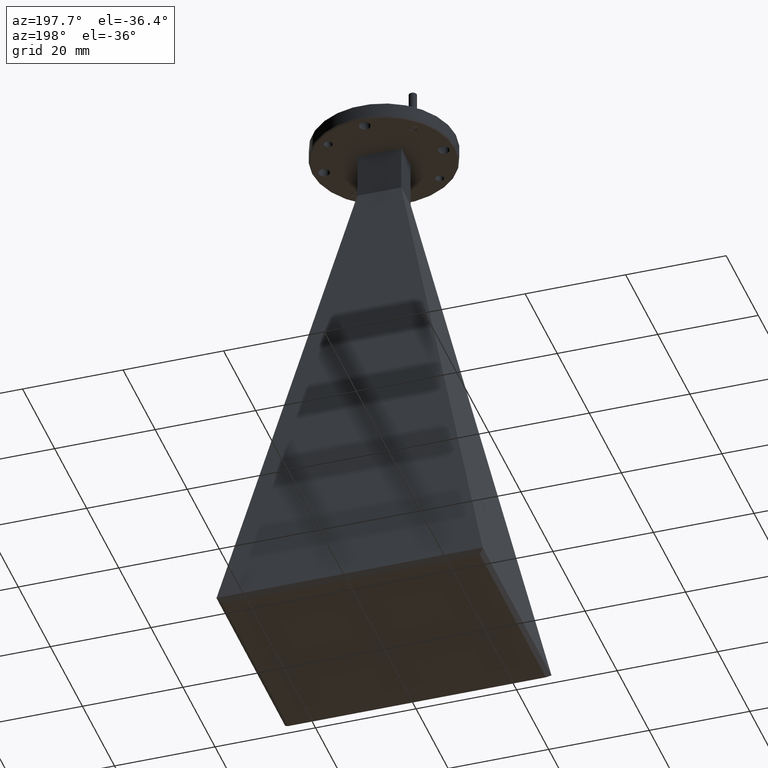
[diagram: clean part render]
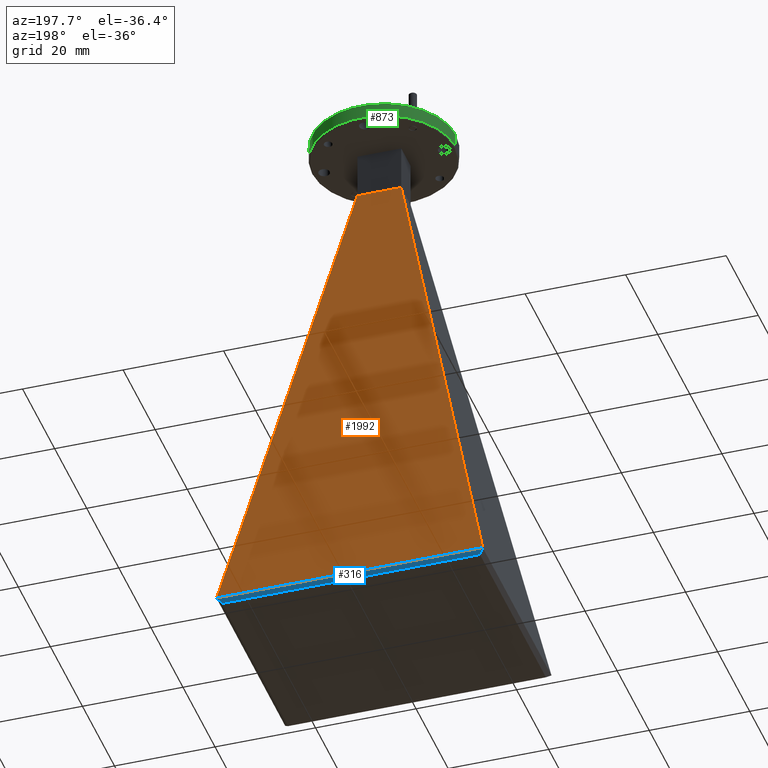
[diagram: same view with three faces highlighted in distinct colors, each labeled with its STEP entity id]
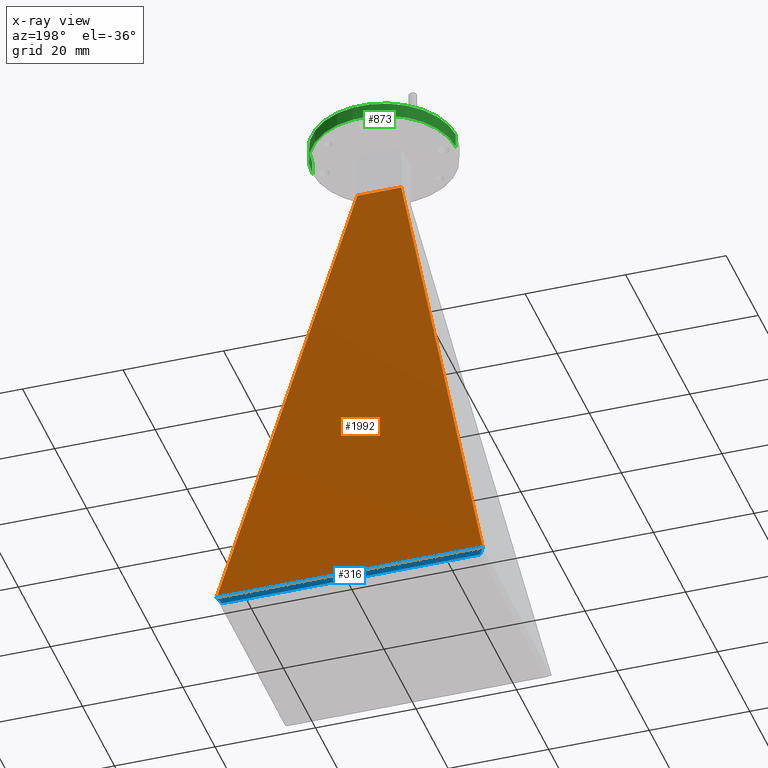
[diagram: x-ray of the same camera — body ghosted, the three highlighted faces saturated]
A machine part, auxiliary view with three faces highlighted in distinct colors.
The next image is the same camera in x-ray (body ghosted, the three faces saturated) — at least one of them is partly hidden behind the body in this view.
Their STEP definitions:

[orange] entity #1992 — the highlighted planar face has unit normal (0, 0.9842, 0.1771).
#40 = DIRECTION ( 'NONE',  ( -1.000000000000000000, 4.963386616395826200E-017, 0.0000000000000000000 ) ) ;
#53 = LINE ( 'NONE', #1782, #411 ) ;
#78 = LINE ( 'NONE', #1353, #926 ) ;
#98 = ORIENTED_EDGE ( 'NONE', *, *, #948, .T. ) ;
#139 = DIRECTION ( 'NONE',  ( -0.2072468437529432800, -0.1732564730235312800, 0.9628244597588333500 ) ) ;
#158 = ORIENTED_EDGE ( 'NONE', *, *, #716, .T. ) ;
#205 = EDGE_LOOP ( 'NONE', ( #2224, #158, #1305, #98 ) ) ;
#321 = CARTESIAN_POINT ( 'NONE',  ( 0.1719999999999996000, 0.1159999999999997000, -0.5219999999999963600 ) ) ;
#400 = CARTESIAN_POINT ( 'NONE',  ( 1.042703095782256300, 0.8438998545605656000, -4.567100145439435500 ) ) ;
#411 = VECTOR ( 'NONE', #139, 39.37007874015748100 ) ;
#483 = EDGE_CURVE ( 'NONE', #757, #1430, #53, .T. ) ;
#509 = LINE ( 'NONE', #1705, #659 ) ;
#553 = LINE ( 'NONE', #949, #1736 ) ;
#649 = VERTEX_POINT ( 'NONE', #1639 ) ;
#659 = VECTOR ( 'NONE', #1546, 39.37007874015748100 ) ;
#692 = AXIS2_PLACEMENT_3D ( 'NONE', #2336, #2316, #1781 ) ;
#716 = EDGE_CURVE ( 'NONE', #757, #1741, #553, .T. ) ;
#757 = VERTEX_POINT ( 'NONE', #400 ) ;
#926 = VECTOR ( 'NONE', #1006, 39.37007874015748100 ) ;
#948 = EDGE_CURVE ( 'NONE', #649, #1430, #78, .T. ) ;
#949 = CARTESIAN_POINT ( 'NONE',  ( 4.188601243704293200E-017, 0.8438998545605651500, -4.567100145439435500 ) ) ;
#967 = CARTESIAN_POINT ( 'NONE',  ( -1.042703095782256700, 0.8438998545605653800, -4.567100145439435500 ) ) ;
#1006 = DIRECTION ( 'NONE',  ( 1.000000000000000000, -4.807710142801345900E-017, -8.651285228772219300E-018 ) ) ;
#1305 = ORIENTED_EDGE ( 'NONE', *, *, #2341, .T. ) ;
#1353 = CARTESIAN_POINT ( 'NONE',  ( 1.060972876230465000E-018, 0.1160000000000000600, -0.5220000000000001300 ) ) ;
#1403 = PLANE ( 'NONE',  #692 ) ;
#1430 = VERTEX_POINT ( 'NONE', #321 ) ;
#1546 = DIRECTION ( 'NONE',  ( 0.2072468437529434200, -0.1732564730235312300, 0.9628244597588333500 ) ) ;
#1639 = CARTESIAN_POINT ( 'NONE',  ( -0.1719999999999996500, 0.1159999999999997000, -0.5219999999999963600 ) ) ;
#1705 = CARTESIAN_POINT ( 'NONE',  ( -1.050000000000000300, 0.8500000000000000900, -4.601000000000000000 ) ) ;
#1736 = VECTOR ( 'NONE', #40, 39.37007874015748100 ) ;
#1741 = VERTEX_POINT ( 'NONE', #967 ) ;
#1781 = DIRECTION ( 'NONE',  ( 0.0000000000000000000, -0.1771015817446088800, 0.9841925775698359100 ) ) ;
#1782 = CARTESIAN_POINT ( 'NONE',  ( 1.049999999999999800, 0.8500000000000003100, -4.601000000000000000 ) ) ;
#1992 = ADVANCED_FACE ( 'NONE', ( #2096 ), #1403, .T. ) ;
#2096 = FACE_OUTER_BOUND ( 'NONE', #205, .T. ) ;
#2224 = ORIENTED_EDGE ( 'NONE', *, *, #483, .F. ) ;
#2316 = DIRECTION ( 'NONE',  ( 4.884928267466234100E-017, 0.9841925775698360200, 0.1771015817446089100 ) ) ;
#2336 = CARTESIAN_POINT ( 'NONE',  ( 1.060972876230465000E-018, 0.02137598696675562700, 0.003846524744691991300 ) ) ;
#2341 = EDGE_CURVE ( 'NONE', #1741, #649, #509, .T. ) ;

[blue] entity #316 — the highlighted planar face has unit normal (-0, -0.7071, 0.7071).
#12 = CARTESIAN_POINT ( 'NONE',  ( 1.042915069598547400, 0.8429150695985476700, -4.568084930401452600 ) ) ;
#40 = DIRECTION ( 'NONE',  ( -1.000000000000000000, 4.963386616395826200E-017, 0.0000000000000000000 ) ) ;
#61 = VERTEX_POINT ( 'NONE', #12 ) ;
#113 = CARTESIAN_POINT ( 'NONE',  ( 4.020343159280623400E-017, 0.8100000000000008300, -4.601000000000000000 ) ) ;
#184 = CARTESIAN_POINT ( 'NONE',  ( -1.010000000000001100, 0.8100000000000009400, -4.601000000000000000 ) ) ;
#248 = ORIENTED_EDGE ( 'NONE', *, *, #977, .T. ) ;
#260 = DIRECTION ( 'NONE',  ( -1.000000000000000000, 4.963386616395826800E-017, 0.0000000000000000000 ) ) ;
#279 = EDGE_LOOP ( 'NONE', ( #942, #1075, #2056, #454, #248, #1858 ) ) ;
#316 = ADVANCED_FACE ( 'NONE', ( #729 ), #1719, .F. ) ;
#330 = CARTESIAN_POINT ( 'NONE',  ( -0.6274600730640930200, 2.773030025024551200, -2.637969974975441300 ) ) ;
#368 = EDGE_CURVE ( 'NONE', #1194, #1154, #1682, .T. ) ;
#400 = CARTESIAN_POINT ( 'NONE',  ( 1.042703095782256300, 0.8438998545605656000, -4.567100145439435500 ) ) ;
#429 = DIRECTION ( 'NONE',  ( -3.509644334104049700E-017, -0.7071067811865490200, 0.7071067811865461300 ) ) ;
#453 = CARTESIAN_POINT ( 'NONE',  ( 4.188601243704294400E-017, 0.8438998545605651500, -4.567100145439435500 ) ) ;
#454 = ORIENTED_EDGE ( 'NONE', *, *, #368, .F. ) ;
#463 = LINE ( 'NONE', #330, #950 ) ;
#489 = LINE ( 'NONE', #560, #1818 ) ;
#553 = LINE ( 'NONE', #949, #1736 ) ;
#560 = CARTESIAN_POINT ( 'NONE',  ( 0.6959332363737086300, 0.4959332363737107300, -4.915066763626291500 ) ) ;
#645 = VERTEX_POINT ( 'NONE', #885 ) ;
#651 = CARTESIAN_POINT ( 'NONE',  ( -0.6959332363737112900, 0.4959332363737111200, -4.915066763626290600 ) ) ;
#697 = CARTESIAN_POINT ( 'NONE',  ( 1.010000000000000500, 0.8100000000000008300, -4.601000000000000000 ) ) ;
#716 = EDGE_CURVE ( 'NONE', #757, #1741, #553, .T. ) ;
#729 = FACE_OUTER_BOUND ( 'NONE', #279, .T. ) ;
#745 = DIRECTION ( 'NONE',  ( 0.5773502691896266200, 0.5773502691896240700, 0.5773502691896265100 ) ) ;
#757 = VERTEX_POINT ( 'NONE', #400 ) ;
#798 = LINE ( 'NONE', #1685, #2035 ) ;
#885 = CARTESIAN_POINT ( 'NONE',  ( -1.042915069598547400, 0.8429150695985471200, -4.568084930401453500 ) ) ;
#942 = ORIENTED_EDGE ( 'NONE', *, *, #716, .F. ) ;
#949 = CARTESIAN_POINT ( 'NONE',  ( 4.188601243704293200E-017, 0.8438998545605651500, -4.567100145439435500 ) ) ;
#950 = VECTOR ( 'NONE', #1029, 39.37007874015748900 ) ;
#956 = DIRECTION ( 'NONE',  ( -0.1504709823431051600, 0.6990559646668844700, 0.6990559646668872400 ) ) ;
#967 = CARTESIAN_POINT ( 'NONE',  ( -1.042703095782256700, 0.8438998545605653800, -4.567100145439435500 ) ) ;
#977 = EDGE_CURVE ( 'NONE', #1194, #645, #1293, .T. ) ;
#1029 = DIRECTION ( 'NONE',  ( -0.1504709823431054900, -0.6990559646668844700, -0.6990559646668872400 ) ) ;
#1075 = ORIENTED_EDGE ( 'NONE', *, *, #2305, .F. ) ;
#1154 = VERTEX_POINT ( 'NONE', #697 ) ;
#1179 = VECTOR ( 'NONE', #1917, 39.37007874015748100 ) ;
#1194 = VERTEX_POINT ( 'NONE', #184 ) ;
#1203 = AXIS2_PLACEMENT_3D ( 'NONE', #453, #429, #260 ) ;
#1283 = EDGE_CURVE ( 'NONE', #1154, #61, #489, .T. ) ;
#1293 = LINE ( 'NONE', #651, #2216 ) ;
#1485 = EDGE_CURVE ( 'NONE', #1741, #645, #463, .T. ) ;
#1682 = LINE ( 'NONE', #113, #1179 ) ;
#1685 = CARTESIAN_POINT ( 'NONE',  ( 0.6274600730640941300, 2.773030025024550800, -2.637969974975441300 ) ) ;
#1719 = PLANE ( 'NONE',  #1203 ) ;
#1736 = VECTOR ( 'NONE', #40, 39.37007874015748100 ) ;
#1741 = VERTEX_POINT ( 'NONE', #967 ) ;
#1818 = VECTOR ( 'NONE', #745, 39.37007874015748900 ) ;
#1858 = ORIENTED_EDGE ( 'NONE', *, *, #1485, .F. ) ;
#1917 = DIRECTION ( 'NONE',  ( 1.000000000000000000, -4.963386616395826800E-017, 0.0000000000000000000 ) ) ;
#1928 = DIRECTION ( 'NONE',  ( -0.5773502691896248400, 0.5773502691896250600, 0.5773502691896274000 ) ) ;
#2035 = VECTOR ( 'NONE', #956, 39.37007874015748900 ) ;
#2056 = ORIENTED_EDGE ( 'NONE', *, *, #1283, .F. ) ;
#2216 = VECTOR ( 'NONE', #1928, 39.37007874015748100 ) ;
#2305 = EDGE_CURVE ( 'NONE', #61, #757, #798, .T. ) ;

[green] entity #873 — the highlighted cylindrical surface (partial cylindrical patch) has radius 14.2875 mm, axis along (0, 0, 1).
#28 = AXIS2_PLACEMENT_3D ( 'NONE', #610, #1337, #1698 ) ;
#33 = DIRECTION ( 'NONE',  ( 0.0000000000000000000, 0.0000000000000000000, -1.000000000000000000 ) ) ;
#169 = EDGE_CURVE ( 'NONE', #1415, #1185, #1987, .T. ) ;
#197 = CIRCLE ( 'NONE', #1887, 0.5625000000000001100 ) ;
#306 = CARTESIAN_POINT ( 'NONE',  ( 0.5625000000000001100, 0.0000000000000000000, -0.04000000000000064600 ) ) ;
#576 = CARTESIAN_POINT ( 'NONE',  ( 0.0000000000000000000, 0.0000000000000000000, -0.04000000000000064600 ) ) ;
#610 = CARTESIAN_POINT ( 'NONE',  ( 0.0000000000000000000, 0.0000000000000000000, -0.1600000000000000000 ) ) ;
#638 = FACE_OUTER_BOUND ( 'NONE', #2301, .T. ) ;
#675 = AXIS2_PLACEMENT_3D ( 'NONE', #576, #33, #1486 ) ;
#689 = EDGE_CURVE ( 'NONE', #1185, #1458, #955, .T. ) ;
#742 = ORIENTED_EDGE ( 'NONE', *, *, #689, .T. ) ;
#768 = DIRECTION ( 'NONE',  ( 0.0000000000000000000, 0.0000000000000000000, 1.000000000000000000 ) ) ;
#780 = CYLINDRICAL_SURFACE ( 'NONE', #28, 0.5625000000000001100 ) ;
#873 = ADVANCED_FACE ( 'NONE', ( #638 ), #780, .T. ) ;
#955 = CIRCLE ( 'NONE', #675, 0.5625000000000001100 ) ;
#958 = ORIENTED_EDGE ( 'NONE', *, *, #1138, .T. ) ;
#1085 = CARTESIAN_POINT ( 'NONE',  ( -0.5625000000000001100, 6.888638245203861900E-017, -0.04000000000000064600 ) ) ;
#1138 = EDGE_CURVE ( 'NONE', #2196, #1415, #197, .T. ) ;
#1185 = VERTEX_POINT ( 'NONE', #1085 ) ;
#1337 = DIRECTION ( 'NONE',  ( 0.0000000000000000000, 0.0000000000000000000, 1.000000000000000000 ) ) ;
#1393 = DIRECTION ( 'NONE',  ( -0.0000000000000000000, -0.0000000000000000000, 1.000000000000000000 ) ) ;
#1409 = CARTESIAN_POINT ( 'NONE',  ( 0.0000000000000000000, 0.0000000000000000000, -0.1500000000000004400 ) ) ;
#1415 = VERTEX_POINT ( 'NONE', #1543 ) ;
#1458 = VERTEX_POINT ( 'NONE', #306 ) ;
#1486 = DIRECTION ( 'NONE',  ( 1.000000000000000000, 0.0000000000000000000, 0.0000000000000000000 ) ) ;
#1490 = VECTOR ( 'NONE', #1491, 39.37007874015748100 ) ;
#1491 = DIRECTION ( 'NONE',  ( 0.0000000000000000000, 0.0000000000000000000, 1.000000000000000000 ) ) ;
#1523 = CARTESIAN_POINT ( 'NONE',  ( -0.5625000000000001100, 6.888638245203861900E-017, -0.1600000000000000000 ) ) ;
#1543 = CARTESIAN_POINT ( 'NONE',  ( -0.5625000000000001100, 6.888638245203861900E-017, -0.1500000000000004400 ) ) ;
#1653 = VECTOR ( 'NONE', #768, 39.37007874015748100 ) ;
#1698 = DIRECTION ( 'NONE',  ( 1.000000000000000000, 0.0000000000000000000, 0.0000000000000000000 ) ) ;
#1877 = ORIENTED_EDGE ( 'NONE', *, *, #2280, .F. ) ;
#1887 = AXIS2_PLACEMENT_3D ( 'NONE', #1409, #1393, #1959 ) ;
#1902 = ORIENTED_EDGE ( 'NONE', *, *, #169, .T. ) ;
#1944 = LINE ( 'NONE', #2236, #1490 ) ;
#1959 = DIRECTION ( 'NONE',  ( 1.000000000000000000, 0.0000000000000000000, 0.0000000000000000000 ) ) ;
#1987 = LINE ( 'NONE', #1523, #1653 ) ;
#2196 = VERTEX_POINT ( 'NONE', #2223 ) ;
#2223 = CARTESIAN_POINT ( 'NONE',  ( 0.5625000000000001100, 0.0000000000000000000, -0.1500000000000004400 ) ) ;
#2236 = CARTESIAN_POINT ( 'NONE',  ( 0.5625000000000001100, 0.0000000000000000000, -0.1600000000000000000 ) ) ;
#2280 = EDGE_CURVE ( 'NONE', #2196, #1458, #1944, .T. ) ;
#2301 = EDGE_LOOP ( 'NONE', ( #958, #1902, #742, #1877 ) ) ;